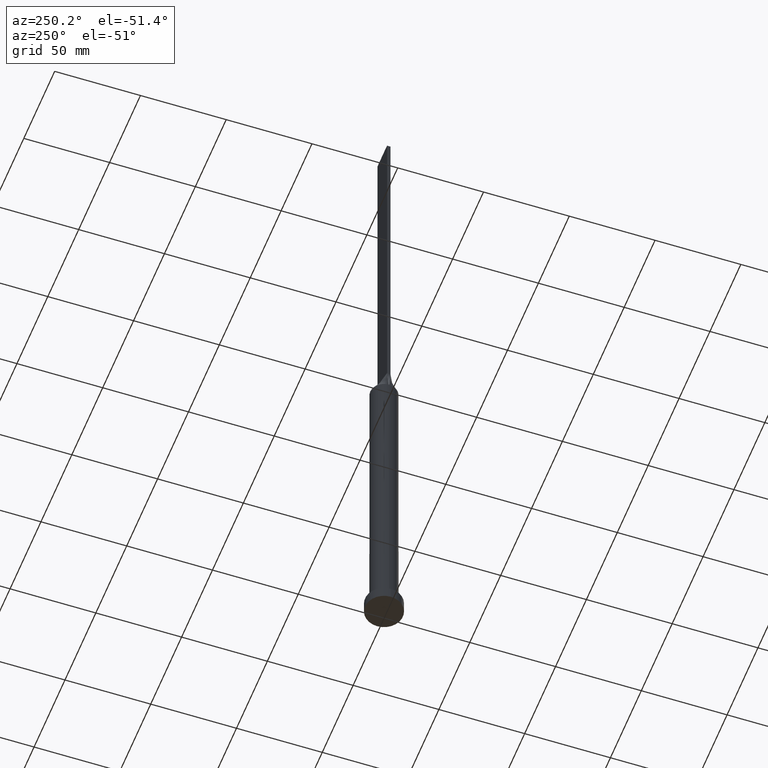
[diagram: clean part render]
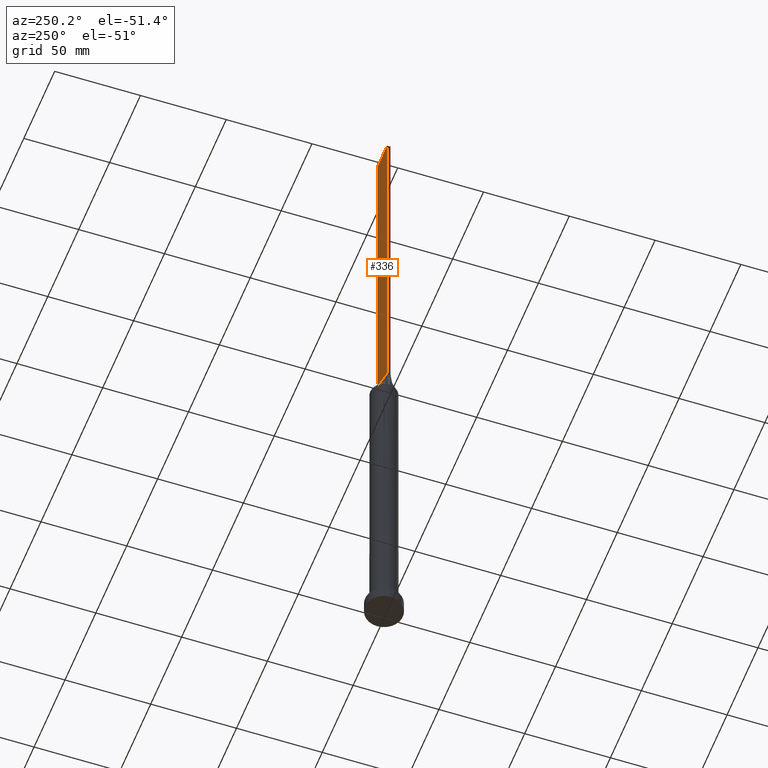
[diagram: same view with one face highlighted and labeled with its STEP entity id]
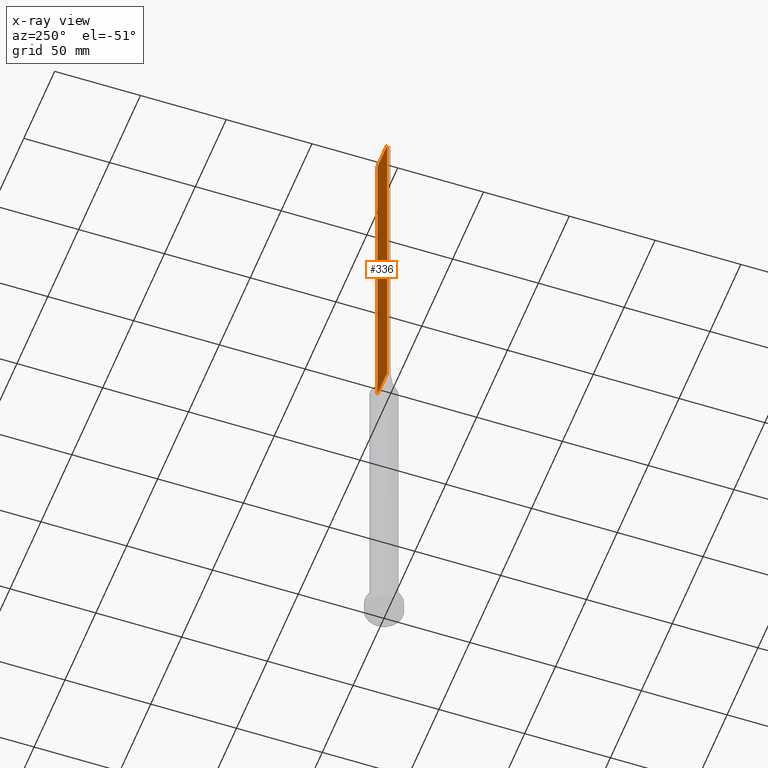
[diagram: x-ray of the same camera — body ghosted, the highlighted face saturated]
A machine part, auxiliary view. The second image highlights one B-rep face of the part: STEP entity #336.
The next image is the same camera in x-ray: the body ghosted, the highlighted face saturated — about 0% of this face is hidden behind the body in this view.
In plain terms, the highlighted planar face has unit normal (0, -1, 0).
Its self-contained STEP definition (entity closure, byte-faithful):
#16 = DIRECTION ( 'NONE',  ( 0.000000000000000000, -0.000000000000000000, -1.000000000000000000 ) ) ;
#22 = ORIENTED_EDGE ( 'NONE', *, *, #187, .F. ) ;
#31 = CARTESIAN_POINT ( 'NONE',  ( 7.750000000000000000, 1.000000000000000000, 400.0000000000000000 ) ) ;
#34 = LINE ( 'NONE', #31, #438 ) ;
#45 = CARTESIAN_POINT ( 'NONE',  ( -7.750000000000000000, 1.000000000000000000, 400.0000000000000000 ) ) ;
#63 = VERTEX_POINT ( 'NONE', #467 ) ;
#72 = CARTESIAN_POINT ( 'NONE',  ( -7.750000000000000000, 1.000000000000000000, 200.0000000000000000 ) ) ;
#76 = EDGE_CURVE ( 'NONE', #476, #559, #226, .T. ) ;
#109 = EDGE_LOOP ( 'NONE', ( #121, #458, #22, #545 ) ) ;
#121 = ORIENTED_EDGE ( 'NONE', *, *, #76, .T. ) ;
#150 = AXIS2_PLACEMENT_3D ( 'NONE', #157, #310, #16 ) ;
#157 = CARTESIAN_POINT ( 'NONE',  ( 7.750000000000000000, 1.000000000000000000, 400.0000000000000000 ) ) ;
#187 = EDGE_CURVE ( 'NONE', #63, #410, #34, .T. ) ;
#219 = PLANE ( 'NONE',  #150 ) ;
#225 = CARTESIAN_POINT ( 'NONE',  ( -7.750000000000000000, 1.000000000000000000, 200.0000000000000000 ) ) ;
#226 = LINE ( 'NONE', #72, #332 ) ;
#228 = VECTOR ( 'NONE', #437, 1000.000000000000000 ) ;
#276 = DIRECTION ( 'NONE',  ( -1.000000000000000000, -0.000000000000000000, -0.000000000000000000 ) ) ;
#297 = LINE ( 'NONE', #637, #228 ) ;
#310 = DIRECTION ( 'NONE',  ( 0.000000000000000000, -1.000000000000000000, 0.000000000000000000 ) ) ;
#332 = VECTOR ( 'NONE', #276, 1000.000000000000000 ) ;
#336 = ADVANCED_FACE ( 'NONE', ( #552 ), #219, .F. ) ;
#410 = VERTEX_POINT ( 'NONE', #45 ) ;
#424 = CARTESIAN_POINT ( 'NONE',  ( -7.750000000000000000, 1.000000000000000000, 400.0000000000000000 ) ) ;
#430 = DIRECTION ( 'NONE',  ( -1.000000000000000000, 0.000000000000000000, 0.000000000000000000 ) ) ;
#437 = DIRECTION ( 'NONE',  ( -0.000000000000000000, -0.000000000000000000, -1.000000000000000000 ) ) ;
#438 = VECTOR ( 'NONE', #430, 1000.000000000000000 ) ;
#456 = EDGE_CURVE ( 'NONE', #63, #476, #297, .T. ) ;
#458 = ORIENTED_EDGE ( 'NONE', *, *, #608, .F. ) ;
#467 = CARTESIAN_POINT ( 'NONE',  ( 7.750000000000000000, 1.000000000000000000, 400.0000000000000000 ) ) ;
#472 = DIRECTION ( 'NONE',  ( -0.000000000000000000, -0.000000000000000000, -1.000000000000000000 ) ) ;
#476 = VERTEX_POINT ( 'NONE', #583 ) ;
#517 = LINE ( 'NONE', #424, #550 ) ;
#545 = ORIENTED_EDGE ( 'NONE', *, *, #456, .T. ) ;
#550 = VECTOR ( 'NONE', #472, 1000.000000000000000 ) ;
#552 = FACE_OUTER_BOUND ( 'NONE', #109, .T. ) ;
#559 = VERTEX_POINT ( 'NONE', #225 ) ;
#583 = CARTESIAN_POINT ( 'NONE',  ( 7.750000000000000000, 1.000000000000000000, 200.0000000000000000 ) ) ;
#608 = EDGE_CURVE ( 'NONE', #410, #559, #517, .T. ) ;
#637 = CARTESIAN_POINT ( 'NONE',  ( 7.750000000000000000, 1.000000000000000000, 400.0000000000000000 ) ) ;